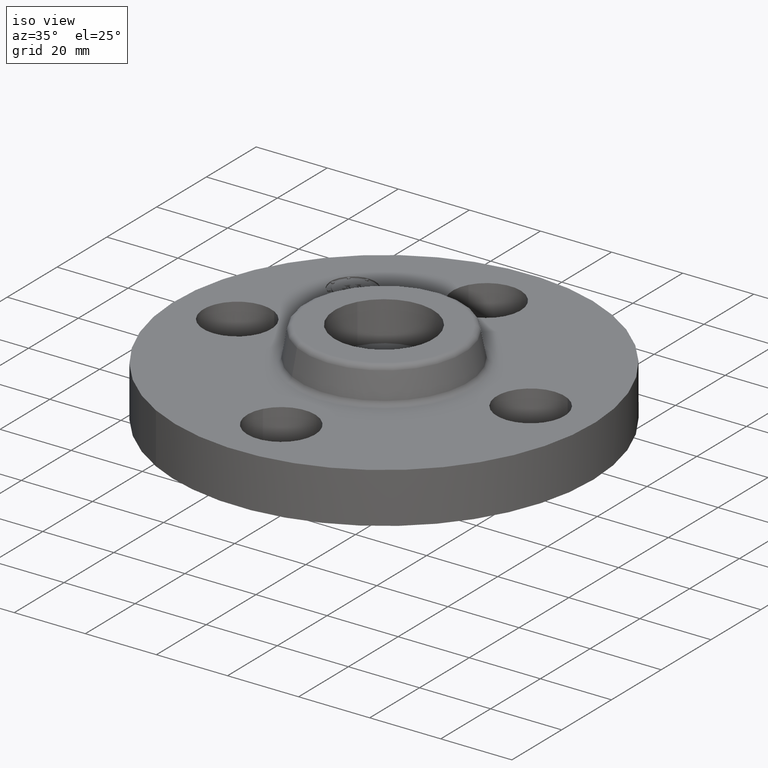
[diagram: clean part render]
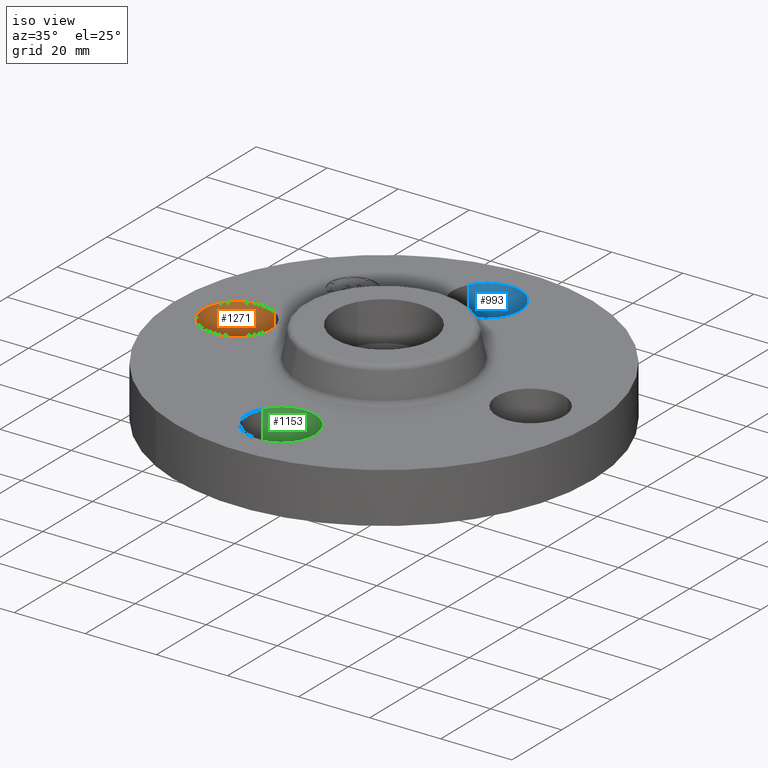
[diagram: same view with three faces highlighted in distinct colors, each labeled with its STEP entity id]
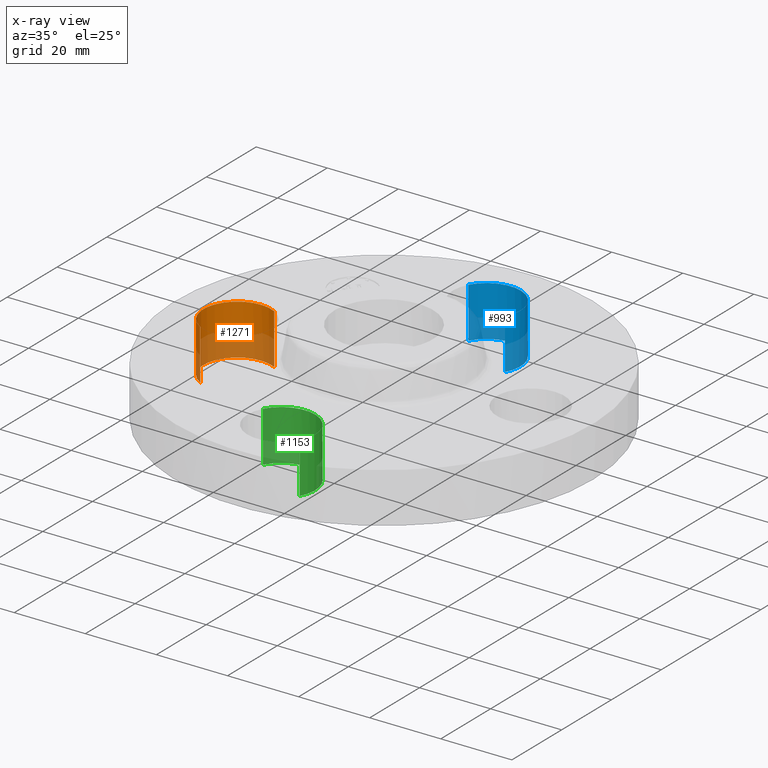
[diagram: x-ray of the same camera — body ghosted, the three highlighted faces saturated]
A machine part, iso view with three faces highlighted in distinct colors.
The next image is the same camera in x-ray (body ghosted, the three faces saturated) — at least one of them is partly hidden behind the body in this view.
Their STEP definitions:

[orange] entity #1271 — the highlighted cylindrical surface (partial cylindrical patch) has radius 9.525 mm, axis along (0, 0, -1).
#782=AXIS2_PLACEMENT_3D('Circle Axis2P3D',#780,#781,$) ;
#1246=AXIS2_PLACEMENT_3D('Cylinder Axis2P3D',#1243,#1244,#1245) ;
#775=CARTESIAN_POINT('Vertex',(-1.44521542304,0.329093460685,0.560000000002)) ;
#777=CARTESIAN_POINT('Vertex',(-1.80478457699,-0.32909346071,0.559999999987)) ;
#780=CARTESIAN_POINT('Axis2P3D Location',(-1.62500000001,-1.287956618E-011,0.560000000002)) ;
#1202=CARTESIAN_POINT('Line Origine',(-1.44521542303,0.32909346071,0.279999999998)) ;
#1206=CARTESIAN_POINT('Vertex',(-1.44521542304,0.329093460708,0.)) ;
#1220=CARTESIAN_POINT('Vertex',(-1.80478457699,-0.329093460688,0.)) ;
#1223=CARTESIAN_POINT('Line Origine',(-1.80478457699,-0.32909346071,0.279999999998)) ;
#1243=CARTESIAN_POINT('Axis2P3D Location',(-1.62500000001,-2.98507657293E-016,0.556062992128)) ;
#1249=CARTESIAN_POINT('Control Point',(-1.80478457699,-0.32909346071,-2.60531586051E-028)) ;
#1250=CARTESIAN_POINT('Control Point',(-1.85647845691,-0.300852965397,4.2344430674E-013)) ;
#1251=CARTESIAN_POINT('Control Point',(-1.90262732855,-0.262462400496,8.4688861348E-013)) ;
#1252=CARTESIAN_POINT('Control Point',(-1.94056492066,-0.215365331668,1.27033292022E-012)) ;
#1253=CARTESIAN_POINT('Control Point',(-1.99592920725,-0.108833594252,2.1172215337E-012)) ;
#1254=CARTESIAN_POINT('Control Point',(-2.00690110986,0.0107232234565,2.96411014718E-012)) ;
#1255=CARTESIAN_POINT('Control Point',(-2.00042438176,0.0708518088381,3.38755445392E-012)) ;
#1256=CARTESIAN_POINT('Control Point',(-1.96424353031,0.185329585265,4.2344430674E-012)) ;
#1257=CARTESIAN_POINT('Control Point',(-1.88746240051,0.27762732854,5.08133168088E-012)) ;
#1258=CARTESIAN_POINT('Control Point',(-1.84036533168,0.315564920645,5.50477598762E-012)) ;
#1259=CARTESIAN_POINT('Control Point',(-1.73383359426,0.370929207243,6.3516646011E-012)) ;
#1260=CARTESIAN_POINT('Control Point',(-1.61427677655,0.38190110985,7.19855321458E-012)) ;
#1261=CARTESIAN_POINT('Control Point',(-1.55414819117,0.375424381748,7.62199752132E-012)) ;
#1262=CARTESIAN_POINT('Control Point',(-1.49690930296,0.357333956023,8.04544182806E-012)) ;
#1263=CARTESIAN_POINT('Control Point',(-1.44521542303,0.32909346071,8.4688861348E-012)) ;
#781=DIRECTION('Axis2P3D Direction',(0.,0.,-0.0393700787402)) ;
#1203=DIRECTION('Vector Direction',(0.,0.,-0.0393700787402)) ;
#1224=DIRECTION('Vector Direction',(0.,0.,-0.0393700787402)) ;
#1244=DIRECTION('Axis2P3D Direction',(0.,0.,-0.0393700787402)) ;
#1245=DIRECTION('Axis2P3D XDirection',(-0.0188750212049,-0.0345504945626,0.)) ;
#1204=VECTOR('Line Direction',#1203,0.0393700787402) ;
#1225=VECTOR('Line Direction',#1224,0.0393700787402) ;
#1266=ORIENTED_EDGE('',*,*,#1227,.F.) ;
#1267=ORIENTED_EDGE('',*,*,#1264,.T.) ;
#1268=ORIENTED_EDGE('',*,*,#1208,.T.) ;
#1269=ORIENTED_EDGE('',*,*,#784,.F.) ;
#1271=ADVANCED_FACE('PartBody',(#1270),#1247,.F.) ;
#1248=B_SPLINE_CURVE_WITH_KNOTS('',5,(#1249,#1250,#1251,#1252,#1253,#1254,#1255,#1256,#1257,#1258,#1259,#1260,#1261,#1262,#1263),.UNSPECIFIED.,.F.,.U.,(6,3,3,3,6),(-14.9618350128,-7.48091750638,8.881784197E-016,7.48091750638,14.9618350128),.UNSPECIFIED.) ;
#783=CIRCLE('generated circle',#782,0.374999999988) ;
#1247=CYLINDRICAL_SURFACE('generated cylinder',#1246,0.375000000001) ;
#784=EDGE_CURVE('',#778,#776,#783,.T.) ;
#1208=EDGE_CURVE('',#1207,#776,#1205,.F.) ;
#1227=EDGE_CURVE('',#1221,#778,#1226,.F.) ;
#1264=EDGE_CURVE('',#1221,#1207,#1248,.T.) ;
#1265=EDGE_LOOP('',(#1266,#1267,#1268,#1269)) ;
#1270=FACE_OUTER_BOUND('',#1265,.T.) ;
#1205=LINE('Line',#1202,#1204) ;
#1226=LINE('Line',#1223,#1225) ;
#776=VERTEX_POINT('',#775) ;
#778=VERTEX_POINT('',#777) ;
#1207=VERTEX_POINT('',#1206) ;
#1221=VERTEX_POINT('',#1220) ;

[blue] entity #993 — the highlighted cylindrical surface (partial cylindrical patch) has radius 9.525 mm, axis along (0, -0, -1).
#715=AXIS2_PLACEMENT_3D('Circle Axis2P3D',#713,#714,$) ;
#954=AXIS2_PLACEMENT_3D('Cylinder Axis2P3D',#951,#952,#953) ;
#713=CARTESIAN_POINT('Axis2P3D Location',(-1.74838271595E-017,1.625,0.560000000002)) ;
#717=CARTESIAN_POINT('Vertex',(-0.32909346071,1.80478457699,0.559999999987)) ;
#719=CARTESIAN_POINT('Vertex',(0.329093460698,1.44521542303,0.560000000002)) ;
#951=CARTESIAN_POINT('Axis2P3D Location',(0.,1.62500000001,0.556062992128)) ;
#956=CARTESIAN_POINT('Line Origine',(-0.32909346071,1.80478457699,0.280000000001)) ;
#960=CARTESIAN_POINT('Vertex',(-0.329093460698,1.804784577,0.)) ;
#964=CARTESIAN_POINT('Control Point',(-0.32909346071,1.80478457699,6.99353086375E-017)) ;
#965=CARTESIAN_POINT('Control Point',(-0.300852965397,1.85647845691,4.23510745283E-013)) ;
#966=CARTESIAN_POINT('Control Point',(-0.262462400496,1.90262732855,8.46951555258E-013)) ;
#967=CARTESIAN_POINT('Control Point',(-0.215365331668,1.94056492066,1.27033991375E-012)) ;
#968=CARTESIAN_POINT('Control Point',(-0.108833594252,1.99592920725,2.1172215337E-012)) ;
#969=CARTESIAN_POINT('Control Point',(0.0107232234565,2.00690110986,2.96410315365E-012)) ;
#970=CARTESIAN_POINT('Control Point',(0.0708518088381,2.00042438176,3.38756144745E-012)) ;
#971=CARTESIAN_POINT('Control Point',(0.185329585265,1.96424353031,4.2344430674E-012)) ;
#972=CARTESIAN_POINT('Control Point',(0.27762732854,1.88746240051,5.08132468735E-012)) ;
#973=CARTESIAN_POINT('Control Point',(0.315564920645,1.84036533168,5.50478298115E-012)) ;
#974=CARTESIAN_POINT('Control Point',(0.370929207243,1.73383359426,6.3516646011E-012)) ;
#975=CARTESIAN_POINT('Control Point',(0.38190110985,1.61427677655,7.19854622105E-012)) ;
#976=CARTESIAN_POINT('Control Point',(0.375424381748,1.55414819117,7.62193457955E-012)) ;
#977=CARTESIAN_POINT('Control Point',(0.357333956023,1.49690930296,8.04537538952E-012)) ;
#978=CARTESIAN_POINT('Control Point',(0.32909346071,1.44521542303,8.4688161995E-012)) ;
#979=CARTESIAN_POINT('Vertex',(0.329093460698,1.44521542305,0.)) ;
#982=CARTESIAN_POINT('Line Origine',(0.32909346071,1.44521542303,0.280000000001)) ;
#714=DIRECTION('Axis2P3D Direction',(0.,0.,-0.0393700787402)) ;
#952=DIRECTION('Axis2P3D Direction',(0.,-0.,-0.0393700787402)) ;
#953=DIRECTION('Axis2P3D XDirection',(-0.0345504945626,0.0188750212049,0.)) ;
#957=DIRECTION('Vector Direction',(0.,0.,-0.0393700787402)) ;
#983=DIRECTION('Vector Direction',(0.,0.,-0.0393700787402)) ;
#958=VECTOR('Line Direction',#957,0.0393700787402) ;
#984=VECTOR('Line Direction',#983,0.0393700787402) ;
#988=ORIENTED_EDGE('',*,*,#962,.F.) ;
#989=ORIENTED_EDGE('',*,*,#981,.T.) ;
#990=ORIENTED_EDGE('',*,*,#986,.T.) ;
#991=ORIENTED_EDGE('',*,*,#721,.F.) ;
#993=ADVANCED_FACE('PartBody',(#992),#955,.F.) ;
#963=B_SPLINE_CURVE_WITH_KNOTS('',5,(#964,#965,#966,#967,#968,#969,#970,#971,#972,#973,#974,#975,#976,#977,#978),.UNSPECIFIED.,.F.,.U.,(6,3,3,3,6),(-14.9618350128,-7.48091750638,8.881784197E-016,7.48091750638,14.9618350128),.UNSPECIFIED.) ;
#716=CIRCLE('generated circle',#715,0.374999999988) ;
#955=CYLINDRICAL_SURFACE('generated cylinder',#954,0.375000000001) ;
#721=EDGE_CURVE('',#718,#720,#716,.T.) ;
#962=EDGE_CURVE('',#961,#718,#959,.F.) ;
#981=EDGE_CURVE('',#961,#980,#963,.T.) ;
#986=EDGE_CURVE('',#980,#720,#985,.F.) ;
#987=EDGE_LOOP('',(#988,#989,#990,#991)) ;
#992=FACE_OUTER_BOUND('',#987,.T.) ;
#959=LINE('Line',#956,#958) ;
#985=LINE('Line',#982,#984) ;
#718=VERTEX_POINT('',#717) ;
#720=VERTEX_POINT('',#719) ;
#961=VERTEX_POINT('',#960) ;
#980=VERTEX_POINT('',#979) ;

[green] entity #1153 — the highlighted cylindrical surface (partial cylindrical patch) has radius 9.525 mm, axis along (0, 0, -1).
#755=AXIS2_PLACEMENT_3D('Circle Axis2P3D',#753,#754,$) ;
#1118=AXIS2_PLACEMENT_3D('Cylinder Axis2P3D',#1115,#1116,#1117) ;
#1129=AXIS2_PLACEMENT_3D('Circle Axis2P3D',#1127,#1128,$) ;
#1136=AXIS2_PLACEMENT_3D('Circle Axis2P3D',#1134,#1135,$) ;
#753=CARTESIAN_POINT('Axis2P3D Location',(-1.74838271595E-017,-1.62500000003,0.560000000002)) ;
#757=CARTESIAN_POINT('Vertex',(-0.329093460698,-1.44521542305,0.560000000002)) ;
#759=CARTESIAN_POINT('Vertex',(0.32909346071,-1.80478457699,0.559999999987)) ;
#1115=CARTESIAN_POINT('Axis2P3D Location',(1.99005104862E-016,-1.62500000001,0.556062992128)) ;
#1120=CARTESIAN_POINT('Line Origine',(-0.32909346071,-1.44521542303,0.279999999998)) ;
#1124=CARTESIAN_POINT('Vertex',(-0.329093460698,-1.44521542303,0.)) ;
#1127=CARTESIAN_POINT('Axis2P3D Location',(1.99005104862E-016,-1.62500000001,8.4688861348E-012)) ;
#1131=CARTESIAN_POINT('Vertex',(2.79741234551E-016,-1.25000000001,-9.55994688486E-012)) ;
#1134=CARTESIAN_POINT('Axis2P3D Location',(1.99005104862E-016,-1.62500000001,8.4688861348E-012)) ;
#1138=CARTESIAN_POINT('Vertex',(0.329093460698,-1.80478457698,0.)) ;
#1141=CARTESIAN_POINT('Line Origine',(0.32909346071,-1.80478457699,0.279999999998)) ;
#754=DIRECTION('Axis2P3D Direction',(0.,0.,-0.0393700787402)) ;
#1116=DIRECTION('Axis2P3D Direction',(0.,0.,-0.0393700787402)) ;
#1117=DIRECTION('Axis2P3D XDirection',(-0.0345504945626,0.0188750212049,0.)) ;
#1121=DIRECTION('Vector Direction',(0.,0.,-0.0393700787402)) ;
#1128=DIRECTION('Axis2P3D Direction',(0.,0.,-0.0393700787402)) ;
#1135=DIRECTION('Axis2P3D Direction',(0.,0.,-0.0393700787402)) ;
#1142=DIRECTION('Vector Direction',(0.,0.,-0.0393700787402)) ;
#1122=VECTOR('Line Direction',#1121,0.0393700787402) ;
#1143=VECTOR('Line Direction',#1142,0.0393700787402) ;
#1147=ORIENTED_EDGE('',*,*,#1126,.F.) ;
#1148=ORIENTED_EDGE('',*,*,#1133,.T.) ;
#1149=ORIENTED_EDGE('',*,*,#1140,.T.) ;
#1150=ORIENTED_EDGE('',*,*,#1145,.T.) ;
#1151=ORIENTED_EDGE('',*,*,#761,.F.) ;
#1153=ADVANCED_FACE('PartBody',(#1152),#1119,.F.) ;
#756=CIRCLE('generated circle',#755,0.374999999988) ;
#1130=CIRCLE('generated circle',#1129,0.375000000001) ;
#1137=CIRCLE('generated circle',#1136,0.375000000001) ;
#1119=CYLINDRICAL_SURFACE('generated cylinder',#1118,0.375000000001) ;
#761=EDGE_CURVE('',#758,#760,#756,.T.) ;
#1126=EDGE_CURVE('',#1125,#758,#1123,.F.) ;
#1133=EDGE_CURVE('',#1125,#1132,#1130,.T.) ;
#1140=EDGE_CURVE('',#1132,#1139,#1137,.T.) ;
#1145=EDGE_CURVE('',#1139,#760,#1144,.F.) ;
#1146=EDGE_LOOP('',(#1147,#1148,#1149,#1150,#1151)) ;
#1152=FACE_OUTER_BOUND('',#1146,.T.) ;
#1123=LINE('Line',#1120,#1122) ;
#1144=LINE('Line',#1141,#1143) ;
#758=VERTEX_POINT('',#757) ;
#760=VERTEX_POINT('',#759) ;
#1125=VERTEX_POINT('',#1124) ;
#1132=VERTEX_POINT('',#1131) ;
#1139=VERTEX_POINT('',#1138) ;